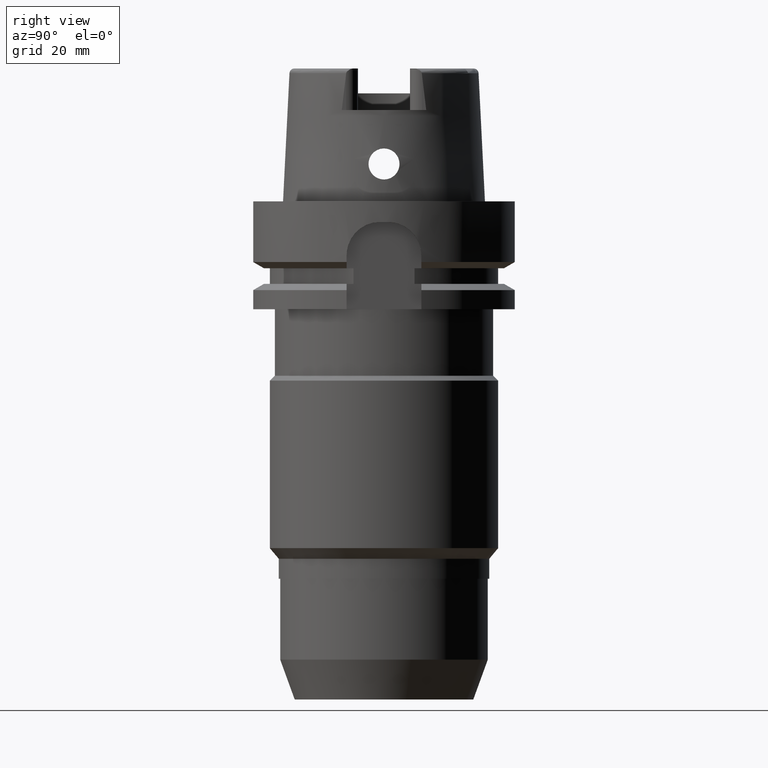
[diagram: clean part render]
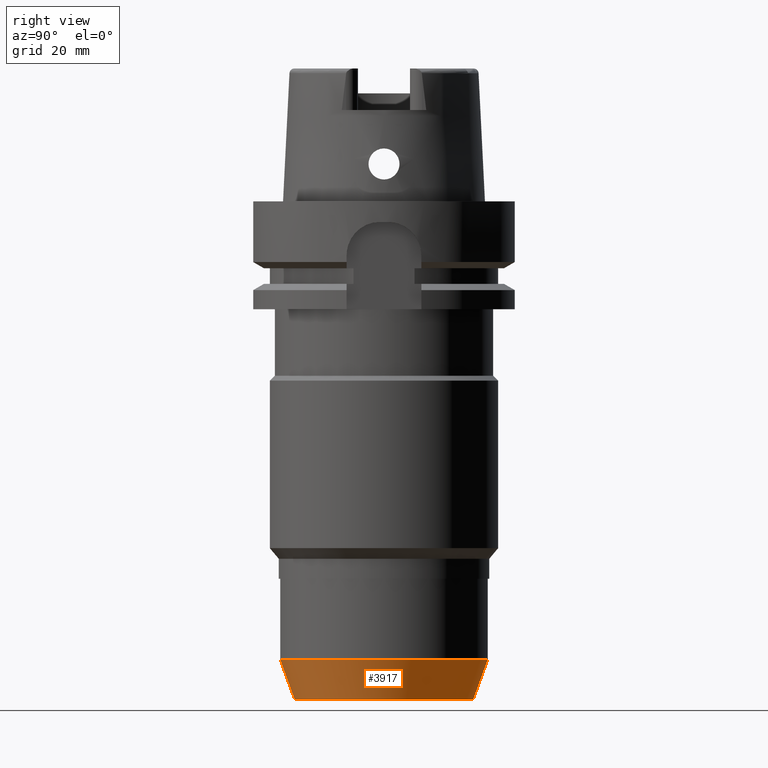
[diagram: same view with one face highlighted and labeled with its STEP entity id]
A machine part, right view. The second image highlights one B-rep face of the part: STEP entity #3917.
In plain terms, the highlighted conical surface has half-angle 20 deg.
Its self-contained STEP definition (entity closure, byte-faithful):
#1793=DIRECTION('',(0.E0,-3.420201433258E-1,-9.396926207858E-1));
#1794=VECTOR('',#1793,1.021610661577E1);
#1795=CARTESIAN_POINT('',(0.E0,2.5E1,-1.104E2));
#1796=LINE('',#1795,#1794);
#1800=CARTESIAN_POINT('',(0.E0,0.E0,-1.104E2));
#1801=DIRECTION('',(0.E0,0.E0,1.E0));
#1802=DIRECTION('',(0.E0,-1.E0,0.E0));
#1803=AXIS2_PLACEMENT_3D('',#1800,#1801,#1802);
#1816=DIRECTION('',(0.E0,3.420201433258E-1,-9.396926207858E-1));
#1817=VECTOR('',#1816,1.021610661577E1);
#1818=CARTESIAN_POINT('',(0.E0,-2.5E1,-1.104E2));
#1819=LINE('',#1818,#1817);
#1823=CARTESIAN_POINT('',(0.E0,0.E0,-1.2E2));
#1824=DIRECTION('',(0.E0,0.E0,1.E0));
#1825=DIRECTION('',(0.E0,-1.E0,0.E0));
#1826=AXIS2_PLACEMENT_3D('',#1823,#1824,#1825);
#2486=CARTESIAN_POINT('',(0.E0,-2.150588575104E1,-1.2E2));
#2487=CARTESIAN_POINT('',(0.E0,2.150588575104E1,-1.2E2));
#2488=VERTEX_POINT('',#2486);
#2489=VERTEX_POINT('',#2487);
#2490=CARTESIAN_POINT('',(0.E0,2.5E1,-1.104E2));
#2491=VERTEX_POINT('',#2490);
#2492=CARTESIAN_POINT('',(0.E0,-2.5E1,-1.104E2));
#2493=VERTEX_POINT('',#2492);
#3903=CARTESIAN_POINT('',(0.E0,0.E0,-1.152E2));
#3904=DIRECTION('',(0.E0,0.E0,1.E0));
#3905=DIRECTION('',(0.E0,1.E0,0.E0));
#3906=AXIS2_PLACEMENT_3D('',#3903,#3904,#3905);
#3907=CONICAL_SURFACE('',#3906,2.325294287552E1,2.E1);
#3909=ORIENTED_EDGE('',*,*,#3908,.T.);
#3911=ORIENTED_EDGE('',*,*,#3910,.F.);
#3913=ORIENTED_EDGE('',*,*,#3912,.F.);
#3914=ORIENTED_EDGE('',*,*,#3896,.T.);
#3915=EDGE_LOOP('',(#3909,#3911,#3913,#3914));
#3916=FACE_OUTER_BOUND('',#3915,.F.);
#1804=CIRCLE('',#1803,2.5E1);
#1827=CIRCLE('',#1826,2.150588575104E1);
#3896=EDGE_CURVE('',#2493,#2491,#1804,.T.);
#3908=EDGE_CURVE('',#2491,#2489,#1796,.T.);
#3910=EDGE_CURVE('',#2488,#2489,#1827,.T.);
#3912=EDGE_CURVE('',#2493,#2488,#1819,.T.);
#3917=ADVANCED_FACE('',(#3916),#3907,.T.);